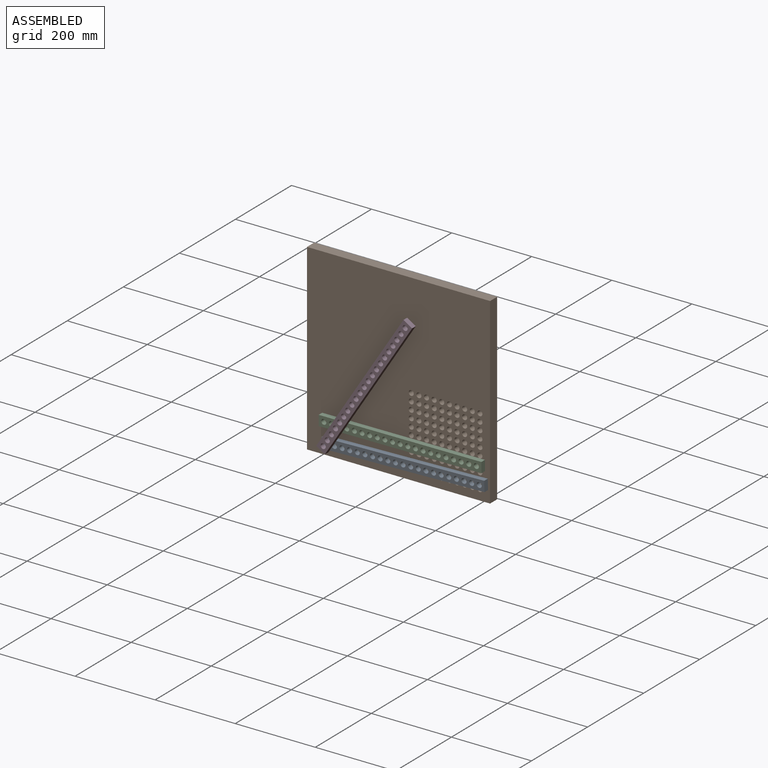
[diagram: assembled view]
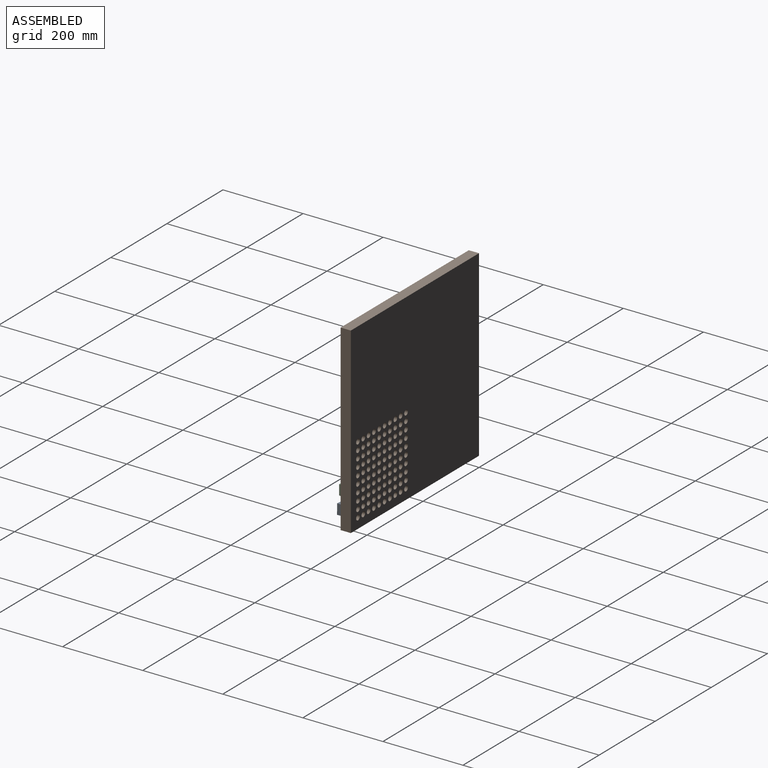
[diagram: assembled view, second angle]
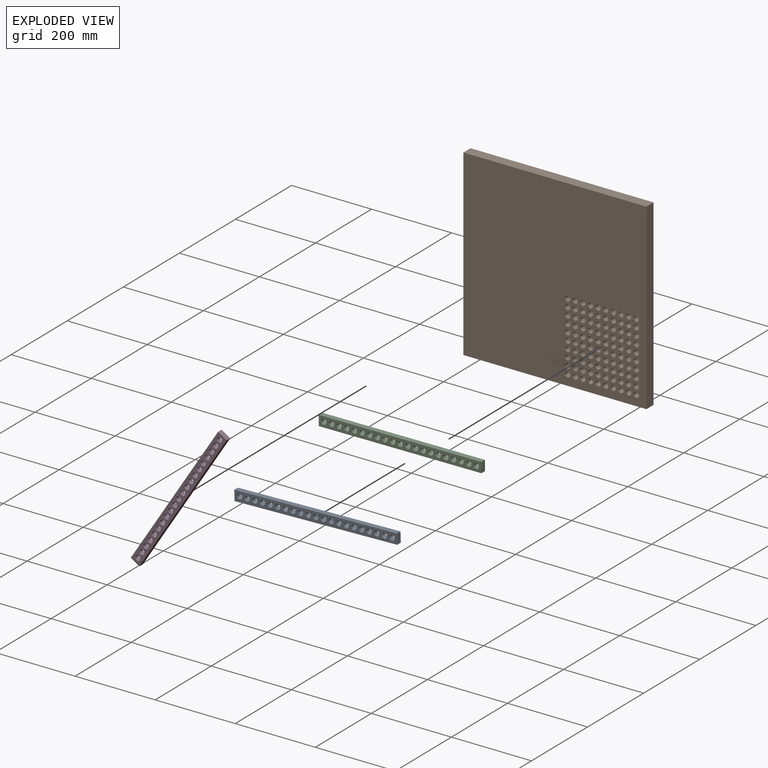
[diagram: exploded view]
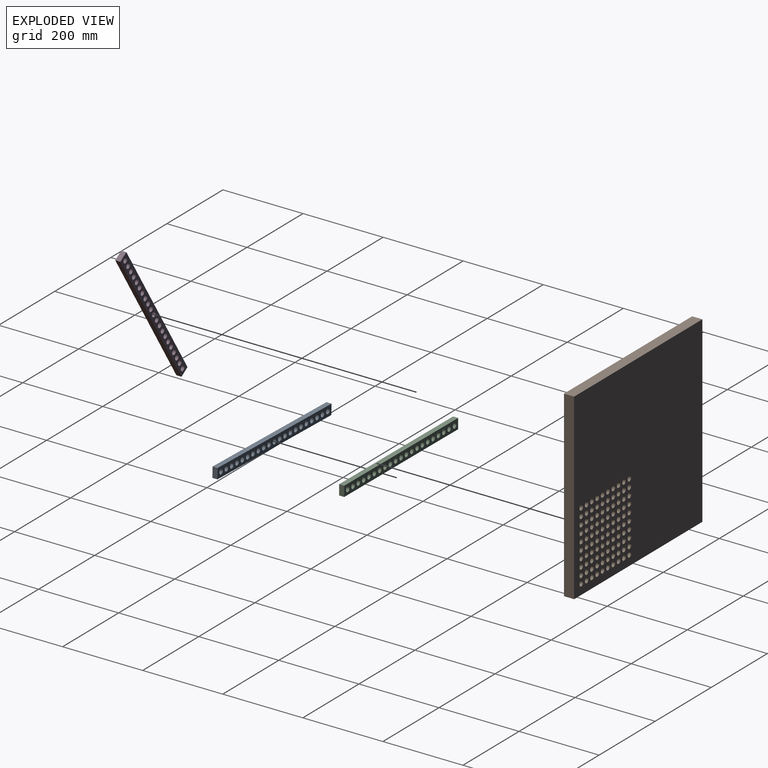
[diagram: exploded view, second angle]
ASSEMBLY  parts=4 mates=3
PART A: 27 faces, bbox 406.4x12.7x25.4 mm
  f0: plane 406.4x12.7mm, normal (0,0,1), area 5161.3mm2, adj f1,f23,f25,f26
  f1: plane 25.4x12.7mm, normal (-1,0,0), area 322.6mm2, adj f0,f2,f25,f26
  f2: plane 406.4x12.7mm, normal (0,0,-1), area 5161.3mm2, adj f1,f23,f25,f26
  f3: cylinder r=6.35mm len=12.7mm, axis (0,1,0), area 506.7mm2, adj f25,f26
  f4: cylinder r=6.35mm len=12.7mm, axis (0,1,0), area 506.7mm2, adj f25,f26
  f5: cylinder r=6.35mm len=12.7mm, axis (0,1,0), area 506.7mm2, adj f25,f26
  f6: cylinder r=6.35mm len=12.7mm, axis (0,1,0), area 506.7mm2, adj f25,f26
  f7: cylinder r=6.35mm len=12.7mm, axis (0,1,0), area 506.7mm2, adj f25,f26
  f8: cylinder r=6.35mm len=12.7mm, axis (0,1,0), area 506.7mm2, adj f25,f26
  f9: cylinder r=6.35mm len=12.7mm, axis (0,1,0), area 506.7mm2, adj f25,f26
  f10: cylinder r=6.35mm len=12.7mm, axis (0,1,0), area 506.7mm2, adj f25,f26
  f11: cylinder r=6.35mm len=12.7mm, axis (0,1,0), area 506.7mm2, adj f25,f26
  f12: cylinder r=6.35mm len=12.7mm, axis (0,1,0), area 506.7mm2, adj f25,f26
  f13: cylinder r=6.35mm len=12.7mm, axis (0,1,0), area 506.7mm2, adj f25,f26
  f14: cylinder r=6.35mm len=12.7mm, axis (0,1,0), area 506.7mm2, adj f25,f26
  f15: cylinder r=6.35mm len=12.7mm, axis (0,1,0), area 506.7mm2, adj f25,f26
  f16: cylinder r=6.35mm len=12.7mm, axis (0,1,0), area 506.7mm2, adj f25,f26
  f17: cylinder r=6.35mm len=12.7mm, axis (0,1,0), area 506.7mm2, adj f25,f26
  f18: cylinder r=6.35mm len=12.7mm, axis (0,1,0), area 506.7mm2, adj f25,f26
  f19: cylinder r=6.35mm len=12.7mm, axis (0,1,0), area 506.7mm2, adj f25,f26
  f20: cylinder r=6.35mm len=12.7mm, axis (0,1,0), area 506.7mm2, adj f25,f26
  f21: cylinder r=6.35mm len=12.7mm, axis (0,1,0), area 506.7mm2, adj f25,f26
  f22: cylinder r=6.35mm len=12.7mm, axis (0,1,0), area 506.7mm2, adj f25,f26
  f23: plane 25.4x12.7mm, normal (1,0,0), area 322.6mm2, adj f0,f2,f25,f26
  f24: cylinder r=6.35mm len=12.7mm, axis (0,1,0), area 506.7mm2, adj f25,f26
  f25: plane 406.4x25.4mm, normal (0,-1,0), area 7662.3mm2, adj f0,f1,f2,f3,f4,f5,f6,f7
  f26: plane 406.4x25.4mm, normal (0,1,0), area 7662.3mm2, adj f0,f1,f2,f3,f4,f5,f6,f7
PART B: 106 faces, bbox 457.2x25.4x457.2 mm
  f0: plane 457.2x25.4mm, normal (0,0,1), area 11612.9mm2, adj f1,f103,f104,f105
  f1: plane 457.2x25.4mm, normal (-1,0,0), area 11612.9mm2, adj f0,f2,f104,f105
  f2: plane 457.2x25.4mm, normal (0,0,-1), area 11612.9mm2, adj f1,f103,f104,f105
  f3: cylinder r=6.35mm len=25.4mm, axis (0,1,0), area 1013.4mm2, adj f104,f105
  f4: cylinder r=6.35mm len=25.4mm, axis (0,1,0), area 1013.4mm2, adj f104,f105
  f5: cylinder r=6.35mm len=25.4mm, axis (0,1,0), area 1013.4mm2, adj f104,f105
  f6: cylinder r=6.35mm len=25.4mm, axis (0,1,0), area 1013.4mm2, adj f104,f105
  f7: cylinder r=6.35mm len=25.4mm, axis (0,1,0), area 1013.4mm2, adj f104,f105
  f8: cylinder r=6.35mm len=25.4mm, axis (0,1,0), area 1013.4mm2, adj f104,f105
  f9: cylinder r=6.35mm len=25.4mm, axis (0,1,0), area 1013.4mm2, adj f104,f105
  f10: cylinder r=6.35mm len=25.4mm, axis (0,1,0), area 1013.4mm2, adj f104,f105
  f11: cylinder r=6.35mm len=25.4mm, axis (0,1,0), area 1013.4mm2, adj f104,f105
  f12: cylinder r=6.35mm len=25.4mm, axis (0,1,0), area 1013.4mm2, adj f104,f105
  f13: cylinder r=6.35mm len=25.4mm, axis (0,1,0), area 1013.4mm2, adj f104,f105
  f14: cylinder r=6.35mm len=25.4mm, axis (0,1,0), area 1013.4mm2, adj f104,f105
  f15: cylinder r=6.35mm len=25.4mm, axis (0,1,0), area 1013.4mm2, adj f104,f105
  f16: cylinder r=6.35mm len=25.4mm, axis (0,1,0), area 1013.4mm2, adj f104,f105
  f17: cylinder r=6.35mm len=25.4mm, axis (0,1,0), area 1013.4mm2, adj f104,f105
  f18: cylinder r=6.35mm len=25.4mm, axis (0,1,0), area 1013.4mm2, adj f104,f105
  f19: cylinder r=6.35mm len=25.4mm, axis (0,1,0), area 1013.4mm2, adj f104,f105
  f20: cylinder r=6.35mm len=25.4mm, axis (0,1,0), area 1013.4mm2, adj f104,f105
  f21: cylinder r=6.35mm len=25.4mm, axis (0,1,0), area 1013.4mm2, adj f104,f105
  f22: cylinder r=6.35mm len=25.4mm, axis (0,1,0), area 1013.4mm2, adj f104,f105
  f23: cylinder r=6.35mm len=25.4mm, axis (0,1,0), area 1013.4mm2, adj f104,f105
  f24: cylinder r=6.35mm len=25.4mm, axis (0,1,0), area 1013.4mm2, adj f104,f105
  f25: cylinder r=6.35mm len=25.4mm, axis (0,1,0), area 1013.4mm2, adj f104,f105
  f26: cylinder r=6.35mm len=25.4mm, axis (0,1,0), area 1013.4mm2, adj f104,f105
  f27: cylinder r=6.35mm len=25.4mm, axis (0,1,0), area 1013.4mm2, adj f104,f105
  f28: cylinder r=6.35mm len=25.4mm, axis (0,1,0), area 1013.4mm2, adj f104,f105
  f29: cylinder r=6.35mm len=25.4mm, axis (0,1,0), area 1013.4mm2, adj f104,f105
  f30: cylinder r=6.35mm len=25.4mm, axis (0,1,0), area 1013.4mm2, adj f104,f105
  f31: cylinder r=6.35mm len=25.4mm, axis (0,1,0), area 1013.4mm2, adj f104,f105
  f32: cylinder r=6.35mm len=25.4mm, axis (0,1,0), area 1013.4mm2, adj f104,f105
  f33: cylinder r=6.35mm len=25.4mm, axis (0,1,0), area 1013.4mm2, adj f104,f105
  f34: cylinder r=6.35mm len=25.4mm, axis (0,1,0), area 1013.4mm2, adj f104,f105
  f35: cylinder r=6.35mm len=25.4mm, axis (0,1,0), area 1013.4mm2, adj f104,f105
  f36: cylinder r=6.35mm len=25.4mm, axis (0,1,0), area 1013.4mm2, adj f104,f105
  f37: cylinder r=6.35mm len=25.4mm, axis (0,1,0), area 1013.4mm2, adj f104,f105
  f38: cylinder r=6.35mm len=25.4mm, axis (0,1,0), area 1013.4mm2, adj f104,f105
  f39: cylinder r=6.35mm len=25.4mm, axis (0,1,0), area 1013.4mm2, adj f104,f105
  f40: cylinder r=6.35mm len=25.4mm, axis (0,1,0), area 1013.4mm2, adj f104,f105
  f41: cylinder r=6.35mm len=25.4mm, axis (0,1,0), area 1013.4mm2, adj f104,f105
  f42: cylinder r=6.35mm len=25.4mm, axis (0,1,0), area 1013.4mm2, adj f104,f105
  f43: cylinder r=6.35mm len=25.4mm, axis (0,1,0), area 1013.4mm2, adj f104,f105
  f44: cylinder r=6.35mm len=25.4mm, axis (0,1,0), area 1013.4mm2, adj f104,f105
  f45: cylinder r=6.35mm len=25.4mm, axis (0,1,0), area 1013.4mm2, adj f104,f105
  f46: cylinder r=6.35mm len=25.4mm, axis (0,1,0), area 1013.4mm2, adj f104,f105
  f47: cylinder r=6.35mm len=25.4mm, axis (0,1,0), area 1013.4mm2, adj f104,f105
  f48: cylinder r=6.35mm len=25.4mm, axis (0,1,0), area 1013.4mm2, adj f104,f105
  f49: cylinder r=6.35mm len=25.4mm, axis (0,1,0), area 1013.4mm2, adj f104,f105
  f50: cylinder r=6.35mm len=25.4mm, axis (0,1,0), area 1013.4mm2, adj f104,f105
  f51: cylinder r=6.35mm len=25.4mm, axis (0,1,0), area 1013.4mm2, adj f104,f105
  f52: cylinder r=6.35mm len=25.4mm, axis (0,1,0), area 1013.4mm2, adj f104,f105
  f53: cylinder r=6.35mm len=25.4mm, axis (0,1,0), area 1013.4mm2, adj f104,f105
  f54: cylinder r=6.35mm len=25.4mm, axis (0,1,0), area 1013.4mm2, adj f104,f105
  f55: cylinder r=6.35mm len=25.4mm, axis (0,1,0), area 1013.4mm2, adj f104,f105
  f56: cylinder r=6.35mm len=25.4mm, axis (0,1,0), area 1013.4mm2, adj f104,f105
  f57: cylinder r=6.35mm len=25.4mm, axis (0,1,0), area 1013.4mm2, adj f104,f105
  f58: cylinder r=6.35mm len=25.4mm, axis (0,1,0), area 1013.4mm2, adj f104,f105
  f59: cylinder r=6.35mm len=25.4mm, axis (0,1,0), area 1013.4mm2, adj f104,f105
  f60: cylinder r=6.35mm len=25.4mm, axis (0,1,0), area 1013.4mm2, adj f104,f105
  f61: cylinder r=6.35mm len=25.4mm, axis (0,1,0), area 1013.4mm2, adj f104,f105
  f62: cylinder r=6.35mm len=25.4mm, axis (0,1,0), area 1013.4mm2, adj f104,f105
  f63: cylinder r=6.35mm len=25.4mm, axis (0,1,0), area 1013.4mm2, adj f104,f105
  f64: cylinder r=6.35mm len=25.4mm, axis (0,1,0), area 1013.4mm2, adj f104,f105
  f65: cylinder r=6.35mm len=25.4mm, axis (0,1,0), area 1013.4mm2, adj f104,f105
  f66: cylinder r=6.35mm len=25.4mm, axis (0,1,0), area 1013.4mm2, adj f104,f105
  f67: cylinder r=6.35mm len=25.4mm, axis (0,1,0), area 1013.4mm2, adj f104,f105
  f68: cylinder r=6.35mm len=25.4mm, axis (0,1,0), area 1013.4mm2, adj f104,f105
  f69: cylinder r=6.35mm len=25.4mm, axis (0,1,0), area 1013.4mm2, adj f104,f105
  f70: cylinder r=6.35mm len=25.4mm, axis (0,1,0), area 1013.4mm2, adj f104,f105
  f71: cylinder r=6.35mm len=25.4mm, axis (0,1,0), area 1013.4mm2, adj f104,f105
  f72: cylinder r=6.35mm len=25.4mm, axis (0,1,0), area 1013.4mm2, adj f104,f105
  f73: cylinder r=6.35mm len=25.4mm, axis (0,1,0), area 1013.4mm2, adj f104,f105
  f74: cylinder r=6.35mm len=25.4mm, axis (0,1,0), area 1013.4mm2, adj f104,f105
  f75: cylinder r=6.35mm len=25.4mm, axis (0,1,0), area 1013.4mm2, adj f104,f105
  f76: cylinder r=6.35mm len=25.4mm, axis (0,1,0), area 1013.4mm2, adj f104,f105
  f77: cylinder r=6.35mm len=25.4mm, axis (0,1,0), area 1013.4mm2, adj f104,f105
  f78: cylinder r=6.35mm len=25.4mm, axis (0,1,0), area 1013.4mm2, adj f104,f105
  f79: cylinder r=6.35mm len=25.4mm, axis (0,1,0), area 1013.4mm2, adj f104,f105
  f80: cylinder r=6.35mm len=25.4mm, axis (0,1,0), area 1013.4mm2, adj f104,f105
  f81: cylinder r=6.35mm len=25.4mm, axis (0,1,0), area 1013.4mm2, adj f104,f105
  f82: cylinder r=6.35mm len=25.4mm, axis (0,1,0), area 1013.4mm2, adj f104,f105
  f83: cylinder r=6.35mm len=25.4mm, axis (0,1,0), area 1013.4mm2, adj f104,f105
  f84: cylinder r=6.35mm len=25.4mm, axis (0,1,0), area 1013.4mm2, adj f104,f105
  f85: cylinder r=6.35mm len=25.4mm, axis (0,1,0), area 1013.4mm2, adj f104,f105
  f86: cylinder r=6.35mm len=25.4mm, axis (0,1,0), area 1013.4mm2, adj f104,f105
  f87: cylinder r=6.35mm len=25.4mm, axis (0,1,0), area 1013.4mm2, adj f104,f105
  f88: cylinder r=6.35mm len=25.4mm, axis (0,1,0), area 1013.4mm2, adj f104,f105
  f89: cylinder r=6.35mm len=25.4mm, axis (0,1,0), area 1013.4mm2, adj f104,f105
  f90: cylinder r=6.35mm len=25.4mm, axis (0,1,0), area 1013.4mm2, adj f104,f105
  f91: cylinder r=6.35mm len=25.4mm, axis (0,1,0), area 1013.4mm2, adj f104,f105
  f92: cylinder r=6.35mm len=25.4mm, axis (0,1,0), area 1013.4mm2, adj f104,f105
  f93: cylinder r=6.35mm len=25.4mm, axis (0,1,0), area 1013.4mm2, adj f104,f105
  f94: cylinder r=6.35mm len=25.4mm, axis (0,1,0), area 1013.4mm2, adj f104,f105
  f95: cylinder r=6.35mm len=25.4mm, axis (0,1,0), area 1013.4mm2, adj f104,f105
  f96: cylinder r=6.35mm len=25.4mm, axis (0,1,0), area 1013.4mm2, adj f104,f105
  f97: cylinder r=6.35mm len=25.4mm, axis (0,1,0), area 1013.4mm2, adj f104,f105
  f98: cylinder r=6.35mm len=25.4mm, axis (0,1,0), area 1013.4mm2, adj f104,f105
  f99: cylinder r=6.35mm len=25.4mm, axis (0,1,0), area 1013.4mm2, adj f104,f105
  f100: cylinder r=6.35mm len=25.4mm, axis (0,1,0), area 1013.4mm2, adj f104,f105
  f101: cylinder r=6.35mm len=25.4mm, axis (0,1,0), area 1013.4mm2, adj f104,f105
  f102: cylinder r=6.35mm len=25.4mm, axis (0,1,0), area 1013.4mm2, adj f104,f105
  f103: plane 457.2x25.4mm, normal (1,0,0), area 11612.9mm2, adj f0,f2,f104,f105
  f104: plane 457.2x457.2mm, normal (0,-1,0), area 196364.2mm2, adj f0,f1,f2,f3,f4,f5,f6,f7
  f105: plane 457.2x457.2mm, normal (0,1,0), area 196364.2mm2, adj f0,f1,f2,f3,f4,f5,f6,f7
PART C: same geometry as A
PART D: same geometry as A
PLACE A rot(axis=(0,-1,0),1.4deg) t=(-380.24,154.26,-106.97)mm
PLACE B t=(-400.3,179.66,84.56)mm fixed
PLACE C rot(axis=(0,-1,0),0.3deg) t=(-387.6,154.26,-62.54)mm
PLACE D rot(axis=(0,-1,0),57.5deg) t=(-468.39,141.56,49.11)mm
MATE revolute A.f21 <-> D.f21  axis (0,-1,0) through (-570.68,141.56,-111.59)mm
MATE revolute C.f20 <-> B.f33  axis (0,1,0) through (-197.1,154.26,-61.49)mm
MATE revolute C.f19 <-> D.f13  axis (0,-1,0) through (-540,141.56,-63.38)mm
